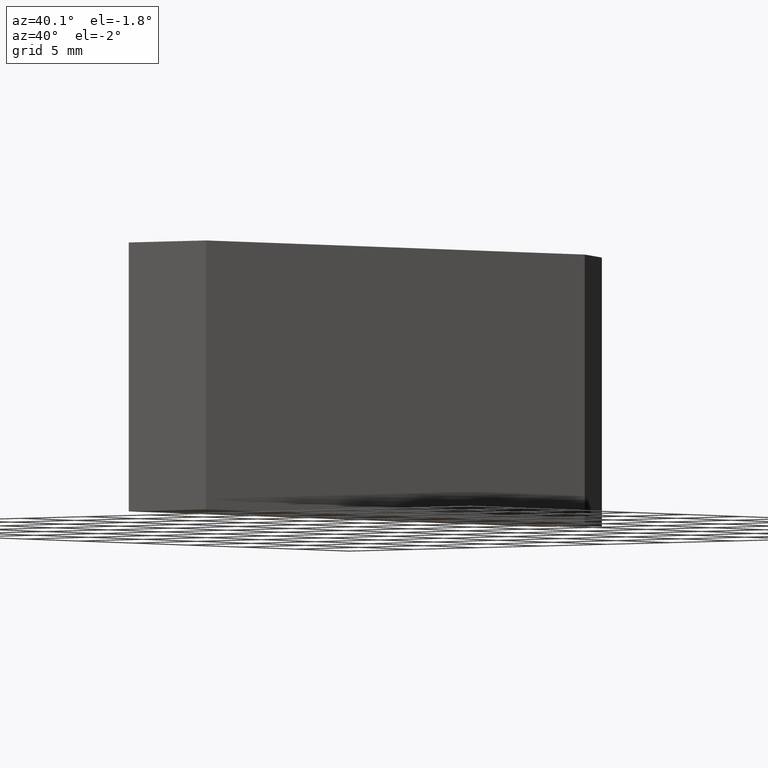
[diagram: clean part render]
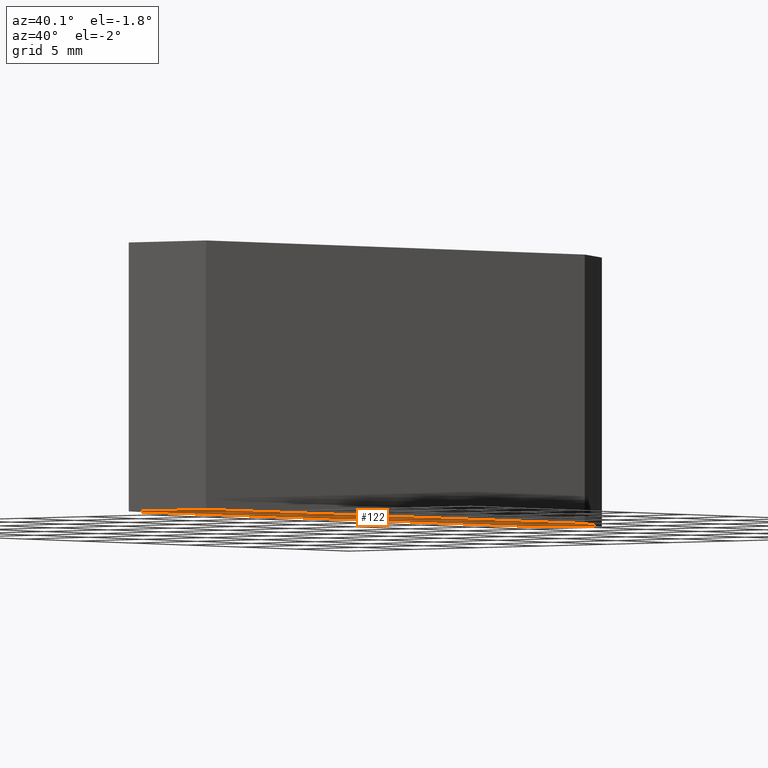
[diagram: same view with one face highlighted and labeled with its STEP entity id]
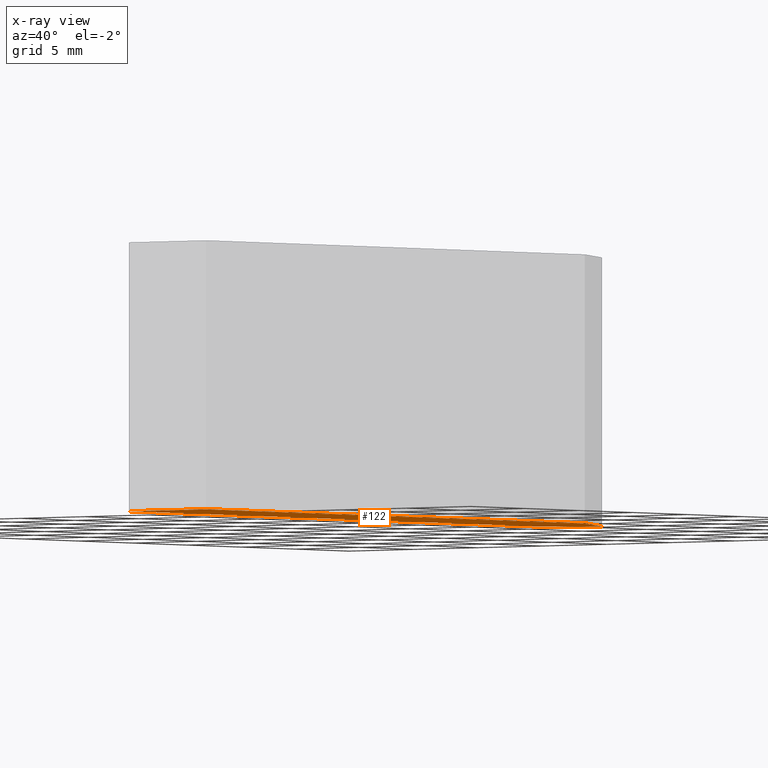
[diagram: x-ray of the same camera — body ghosted, the highlighted face saturated]
A machine part, auxiliary view. The second image highlights one B-rep face of the part: STEP entity #122.
The next image is the same camera in x-ray: the body ghosted, the highlighted face saturated — about 0% of this face is hidden behind the body in this view.
In plain terms, the highlighted planar face has unit normal (0, 0, 1).
Its self-contained STEP definition (entity closure, byte-faithful):
#16=FACE_OUTER_BOUND('',#23,.T.);
#23=EDGE_LOOP('',(#85,#86,#87,#88,#89));
#30=LINE('',#194,#45);
#31=LINE('',#196,#46);
#32=LINE('',#198,#47);
#33=LINE('',#200,#48);
#34=LINE('',#201,#49);
#45=VECTOR('',#163,10.);
#46=VECTOR('',#164,10.);
#47=VECTOR('',#165,10.);
#48=VECTOR('',#166,10.);
#49=VECTOR('',#167,10.);
#60=VERTEX_POINT('',#192);
#61=VERTEX_POINT('',#193);
#62=VERTEX_POINT('',#195);
#63=VERTEX_POINT('',#197);
#64=VERTEX_POINT('',#199);
#70=EDGE_CURVE('',#60,#61,#30,.T.);
#71=EDGE_CURVE('',#62,#60,#31,.T.);
#72=EDGE_CURVE('',#63,#62,#32,.T.);
#73=EDGE_CURVE('',#64,#63,#33,.T.);
#74=EDGE_CURVE('',#61,#64,#34,.T.);
#85=ORIENTED_EDGE('',*,*,#70,.F.);
#86=ORIENTED_EDGE('',*,*,#71,.F.);
#87=ORIENTED_EDGE('',*,*,#72,.F.);
#88=ORIENTED_EDGE('',*,*,#73,.F.);
#89=ORIENTED_EDGE('',*,*,#74,.F.);
#115=PLANE('',#152);
#122=ADVANCED_FACE('',(#16),#115,.F.);
#152=AXIS2_PLACEMENT_3D('',#191,#161,#162);
#161=DIRECTION('center_axis',(0.,0.,1.));
#162=DIRECTION('ref_axis',(1.,0.,0.));
#163=DIRECTION('',(-3.17419791275863E-16,1.,0.));
#164=DIRECTION('',(1.,1.22464679914735E-16,0.));
#165=DIRECTION('',(1.75576109523537E-16,-1.,0.));
#166=DIRECTION('',(-0.840270778975161,-0.542166965058252,0.));
#167=DIRECTION('',(-0.5,0.866025403784438,0.));
#191=CARTESIAN_POINT('Origin',(2.93862086603705,19.1599027026643,-8.));
#192=CARTESIAN_POINT('',(6.00000000000001,3.10975040891632E-17,-8.));
#193=CARTESIAN_POINT('',(6.,34.9764902863377,-8.));
#194=CARTESIAN_POINT('',(6.,34.9764902863377,-8.));
#195=CARTESIAN_POINT('',(1.11022302462516E-15,-7.0369057539925E-16,-8.));
#196=CARTESIAN_POINT('',(6.00000000000001,3.10975040891632E-17,-8.));
#197=CARTESIAN_POINT('',(-5.56166913726925E-15,38.,-8.));
#198=CARTESIAN_POINT('',(1.11022302462516E-15,-7.0369057539925E-16,-8.));
#199=CARTESIAN_POINT('',(3.09967531454034,40.,-8.));
#200=CARTESIAN_POINT('',(-5.56166913726925E-15,38.,-8.));
#201=CARTESIAN_POINT('',(3.09967531454034,40.,-8.));